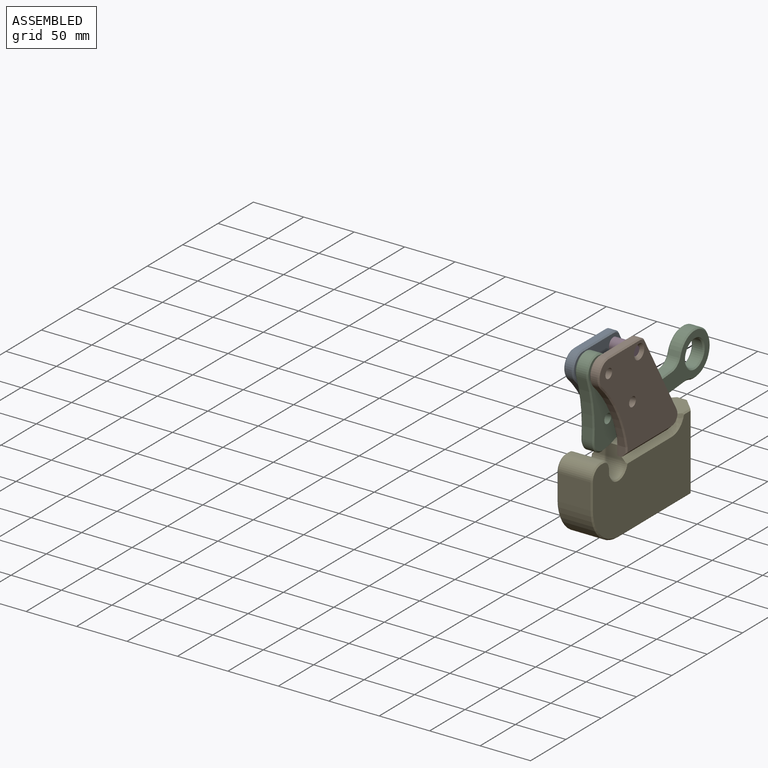
[diagram: assembled view]
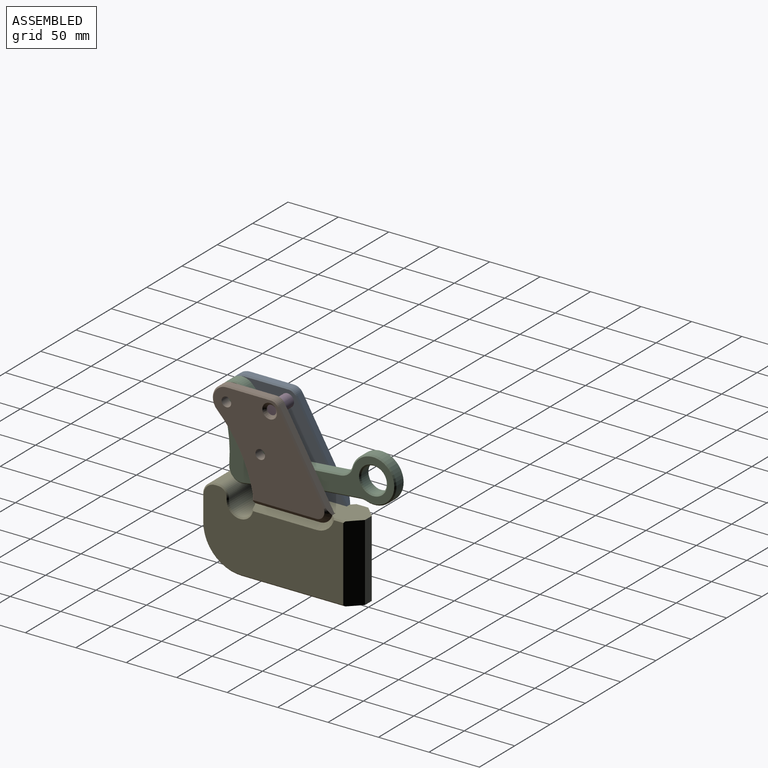
[diagram: assembled view, second angle]
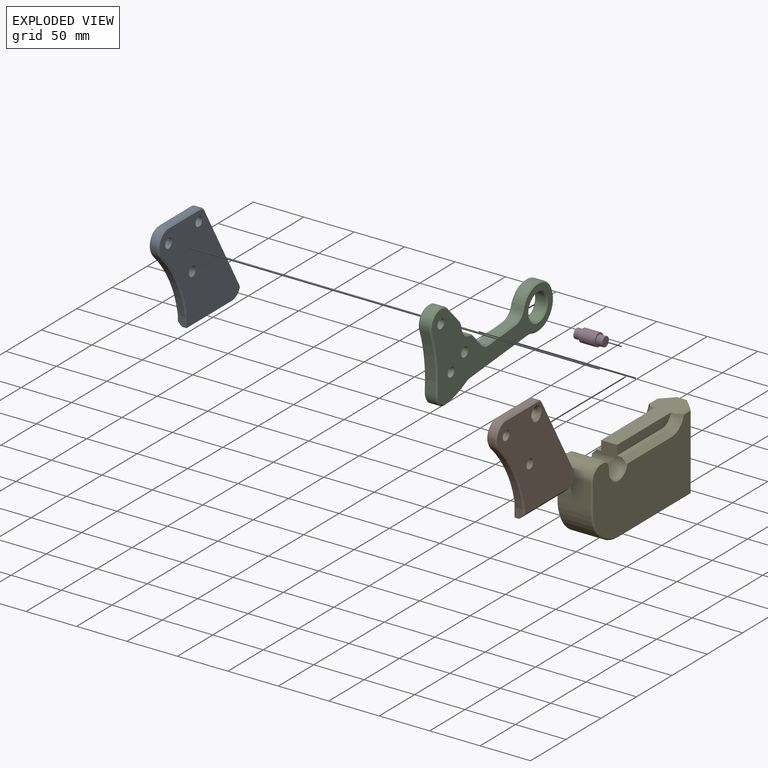
[diagram: exploded view]
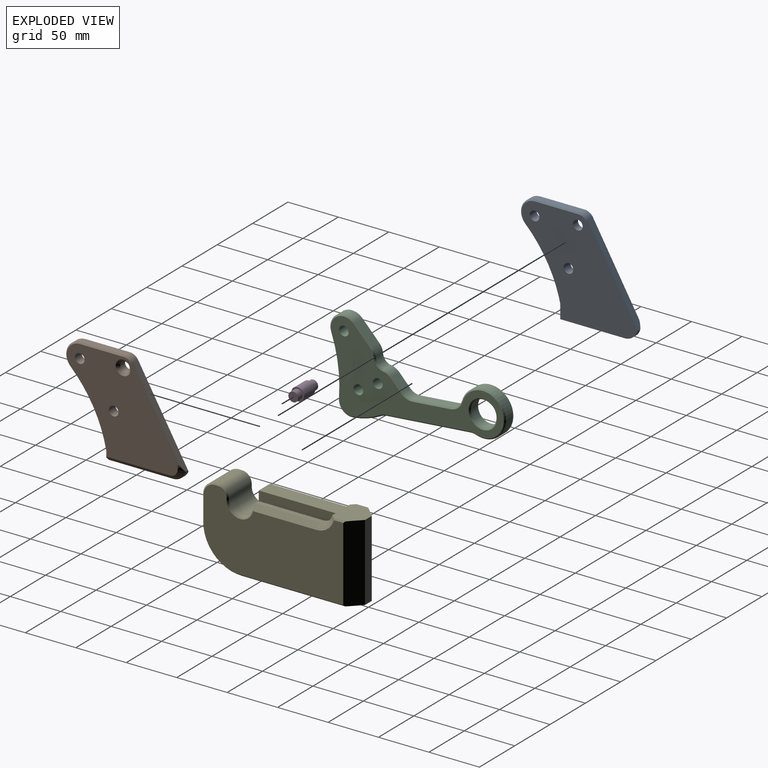
[diagram: exploded view, second angle]
ASSEMBLY  parts=5 mates=5
PART A: 27 faces, bbox 116.4x9.6x100.1 mm
  f0: cylinder r=12.7mm len=12.3mm, axis (0,1,0), area 77.6mm2, adj f1,f8,f10,f13,f25
  f1: plane 85.73x49.49mm, normal (0.87,0,0.5), area 680.6mm2, adj f0,f2,f13,f18,f25
  f2: cylinder r=9.53mm len=8.25mm, axis (0,1,0), area 69.7mm2, adj f1,f3,f14,f19
  f3: plane 43.86x6.99mm, normal (0,0,1), area 306.3mm2, adj f2,f4,f15,f21
  f4: cylinder r=14.29mm len=24.39mm, axis (0,1,0), area 235.1mm2, adj f3,f5,f16,f23
  f5: cylinder r=127mm len=66.1mm, axis (0,1,0), area 532mm2, adj f4,f6,f17,f22
  f6: plane 15.55x8.35mm, normal (-1,0,0), area 76.2mm2, adj f5,f8,f10,f17,f20,f24
  f7: cylinder r=4.76mm len=9.53mm, axis (0,1,0), area 285mm2, adj f10,f11
  f8: plane 63.9x4.7mm, normal (0,0,-1), area 300.3mm2, adj f0,f6,f10,f24
  f9: cylinder r=4.76mm len=9.53mm, axis (0,1,0), area 285mm2, adj f10,f11
  f10: plane 114.08x98.74mm, normal (0,-1,0), area 6479.7mm2, adj f0,f6,f7,f8,f9,f12,f13,f14
  f11: plane 110.19x93.92mm, normal (0,1,0), area 5995.4mm2, adj f7,f9,f18,f19,f20,f21,f22,f23
  f12: cylinder r=4.76mm len=9.53mm, axis (0,-1,0), area 209mm2, adj f10,f26
  f13: plane 87.38x50.63mm, normal (0.61,-0.71,0.35), area 178.8mm2, adj f0,f1,f10,f14
  f14: cone r=8.26mm half-angle=45deg, axis (0,1,0), area 16.7mm2, adj f2,f10,f13,f15
  f15: plane 43.86x1.27mm, normal (0,-0.71,0.71), area 78.8mm2, adj f3,f10,f14,f16
  f16: cone r=13.02mm half-angle=45deg, axis (0,1,0), area 57.8mm2, adj f4,f10,f15,f17
  f17: cone r=127mm half-angle=45deg, axis (0,-1,0), area 132.3mm2, adj f5,f6,f10,f16
  f18: plane 79.64x46.76mm, normal (0.61,0.71,0.35), area 163.9mm2, adj f1,f11,f19,f25
  f19: cone r=9.53mm half-angle=45deg, axis (0,-1,0), area 16.7mm2, adj f2,f11,f18,f21
  f20: plane 6.09x1.27mm, normal (-0.71,0.71,0), area 9.7mm2, adj f6,f11,f22,f24
  f21: plane 43.86x1.27mm, normal (0,0.71,0.71), area 78.8mm2, adj f3,f11,f19,f23
  f22: cone r=128.27mm half-angle=45deg, axis (0,1,0), area 137.6mm2, adj f5,f11,f20,f23
  f23: cone r=14.29mm half-angle=45deg, axis (0,-1,0), area 57.8mm2, adj f4,f11,f21,f22
  f24: plane 63.9x4.83mm, normal (0,0.71,-0.71), area 435mm2, adj f6,f8,f11,f20,f25
  f25: cone r=12.7mm half-angle=45deg, axis (0,-1,0), area 113.5mm2, adj f0,f1,f11,f18,f24
  f26: cone r=7.3mm half-angle=45deg, axis (0,1,0), area 136.2mm2, adj f11,f12
PART B: 27 faces, bbox 116.4x9.6x100.1 mm
  f0: cylinder r=12.7mm len=12.3mm, axis (0,1,0), area 77.6mm2, adj f1,f8,f11,f23,f26
  f1: plane 85.73x49.49mm, normal (0.87,0,0.5), area 680.6mm2, adj f0,f2,f18,f23,f26
  f2: cylinder r=9.53mm len=8.25mm, axis (0,1,0), area 69.7mm2, adj f1,f3,f17,f22
  f3: plane 43.86x6.99mm, normal (0,0,1), area 306.3mm2, adj f2,f4,f16,f21
  f4: cylinder r=14.29mm len=24.39mm, axis (0,1,0), area 235.1mm2, adj f3,f5,f15,f20
  f5: cylinder r=127mm len=66.1mm, axis (0,1,0), area 532mm2, adj f4,f6,f14,f19
  f6: plane 15.55x8.35mm, normal (-1,0,0), area 76.2mm2, adj f5,f8,f11,f13,f19,f25
  f7: cylinder r=4.76mm len=9.53mm, axis (0,1,0), area 285mm2, adj f10,f11
  f8: plane 63.9x4.7mm, normal (0,0,-1), area 300.3mm2, adj f0,f6,f11,f25
  f9: cylinder r=4.76mm len=9.53mm, axis (0,1,0), area 285mm2, adj f10,f11
  f10: plane 110.19x93.92mm, normal (0,-1,0), area 5995.4mm2, adj f7,f9,f13,f14,f15,f16,f17,f18
  f11: plane 114.08x98.74mm, normal (0,1,0), area 6479.7mm2, adj f0,f6,f7,f8,f9,f12,f19,f20
  f12: cylinder r=4.76mm len=9.53mm, axis (0,-1,0), area 209mm2, adj f11,f24
  f13: plane 6.09x1.27mm, normal (-0.71,-0.71,0), area 9.7mm2, adj f6,f10,f14,f25
  f14: cone r=127mm half-angle=45deg, axis (0,-1,0), area 137.6mm2, adj f5,f10,f13,f15
  f15: cone r=13.02mm half-angle=45deg, axis (0,1,0), area 57.8mm2, adj f4,f10,f14,f16
  f16: plane 43.86x1.27mm, normal (0,-0.71,0.71), area 78.8mm2, adj f3,f10,f15,f17
  f17: cone r=8.26mm half-angle=45deg, axis (0,1,0), area 16.7mm2, adj f2,f10,f16,f18
  f18: plane 79.64x46.76mm, normal (0.61,-0.71,0.35), area 163.9mm2, adj f1,f10,f17,f26
  f19: cone r=128.27mm half-angle=45deg, axis (0,1,0), area 132.3mm2, adj f5,f6,f11,f20
  f20: cone r=14.29mm half-angle=45deg, axis (0,-1,0), area 57.8mm2, adj f4,f11,f19,f21
  f21: plane 43.86x1.27mm, normal (0,0.71,0.71), area 78.8mm2, adj f3,f11,f20,f22
  f22: cone r=9.53mm half-angle=45deg, axis (0,-1,0), area 16.7mm2, adj f2,f11,f21,f23
  f23: plane 87.38x50.63mm, normal (0.61,0.71,0.35), area 178.8mm2, adj f0,f1,f11,f22
  f24: cone r=4.76mm half-angle=45deg, axis (0,-1,0), area 136.2mm2, adj f10,f12
  f25: plane 63.9x4.83mm, normal (0,-0.71,-0.71), area 435mm2, adj f6,f8,f10,f13,f26
  f26: cone r=7.87mm half-angle=45deg, axis (0,1,0), area 113.5mm2, adj f0,f1,f10,f18,f25
PART C: 56 faces, bbox 170.4x12.7x90.5 mm
  f0: plane 12.39x10.16mm, normal (0.78,0,0.62), area 160.8mm2, adj f3,f20,f31,f47
  f1: cylinder r=12.7mm len=11.83mm, axis (0,1,0), area 154.7mm2, adj f2,f15,f37,f53
  f2: plane 37.45x10.16mm, normal (0,0,1), area 380.5mm2, adj f1,f3,f35,f51
  f3: cylinder r=12.7mm len=10.16mm, axis (0,1,0), area 116mm2, adj f0,f2,f33,f49
  f4: plane 19.28x15.33mm, normal (0.78,0,0.62), area 250.3mm2, adj f5,f21,f23,f39
  f5: cylinder r=14.29mm len=25.47mm, axis (0,1,0), area 395.3mm2, adj f4,f6,f22,f38
  f6: cylinder r=139.7mm len=57.83mm, axis (0,1,0), area 592.4mm2, adj f5,f7,f24,f40
  f7: cylinder r=12.7mm len=14.77mm, axis (0,1,0), area 226.5mm2, adj f6,f8,f26,f42
  f8: cylinder r=76.2mm len=29mm, axis (0,1,0), area 303.6mm2, adj f7,f9,f28,f44
  f9: cylinder r=12.7mm len=10.16mm, axis (0,1,0), area 53.2mm2, adj f8,f10,f30,f46
  f10: plane 83.69x10.16mm, normal (0,0,-1), area 850.3mm2, adj f9,f11,f32,f48
  f11: cylinder r=12.7mm len=10.16mm, axis (0,1,0), area 55.4mm2, adj f10,f15,f34,f50
  f12: cylinder r=4.76mm len=12.7mm, axis (0,1,0), area 380mm2, adj f17,f18
  f13: cylinder r=4.76mm len=12.7mm, axis (0,1,0), area 380mm2, adj f17,f18
  f14: cylinder r=4.76mm len=12.7mm, axis (0,1,0), area 380mm2, adj f17,f18
  f15: cylinder r=22.23mm len=44.45mm, axis (0,1,0), area 1077.1mm2, adj f1,f11,f36,f52
  f16: cylinder r=12.7mm len=25.4mm, axis (0,1,0), area 810.7mm2, adj f54,f55
  f17: plane 167.85x87.93mm, normal (0,-1,0), area 5437mm2, adj f12,f13,f14,f38,f39,f40,f41,f42
  f18: plane 167.85x87.93mm, normal (0,1,0), area 5437mm2, adj f12,f13,f14,f22,f23,f24,f25,f26
  f19: cylinder r=9.53mm len=10.16mm, axis (0,-1,0), area 133.3mm2, adj f20,f21,f27,f43
  f20: cylinder r=12.7mm len=10.16mm, axis (0,-1,0), area 88.9mm2, adj f0,f19,f29,f45
  f21: cylinder r=12.7mm len=10.16mm, axis (0,-1,0), area 88.9mm2, adj f4,f19,f25,f41
  f22: cone r=14.29mm half-angle=45deg, axis (0,-1,0), area 66.8mm2, adj f5,f18,f23,f24
  f23: plane 20.07x16.33mm, normal (0.55,0.71,0.44), area 44.2mm2, adj f4,f18,f22,f25
  f24: cone r=140.97mm half-angle=45deg, axis (0,1,0), area 105.2mm2, adj f6,f18,f22,f26
  f25: cone r=11.43mm half-angle=45deg, axis (0,-1,0), area 14.9mm2, adj f18,f21,f23,f27
  f26: cone r=12.7mm half-angle=45deg, axis (0,-1,0), area 38mm2, adj f7,f18,f24,f28
  f27: cone r=10.79mm half-angle=45deg, axis (0,1,0), area 25.1mm2, adj f18,f19,f25,f29
  f28: cone r=76.2mm half-angle=45deg, axis (0,-1,0), area 53.2mm2, adj f8,f18,f26,f30
  f29: cone r=11.43mm half-angle=45deg, axis (0,-1,0), area 14.9mm2, adj f18,f20,f27,f31
  f30: cone r=13.97mm half-angle=45deg, axis (0,1,0), area 9.9mm2, adj f9,f18,f28,f32
  f31: plane 13.18x10.84mm, normal (0.55,0.71,0.44), area 28.4mm2, adj f0,f18,f29,f33
  f32: plane 83.69x1.27mm, normal (0,0.71,-0.71), area 150.3mm2, adj f10,f18,f30,f34
  f33: cone r=13.97mm half-angle=45deg, axis (0,1,0), area 21.5mm2, adj f3,f18,f31,f35
  f34: cone r=13.97mm half-angle=45deg, axis (0,1,0), area 10.3mm2, adj f11,f18,f32,f36
  f35: plane 37.45x1.27mm, normal (0,0.71,0.71), area 67.3mm2, adj f2,f18,f33,f37
  f36: cone r=22.23mm half-angle=45deg, axis (0,-1,0), area 185mm2, adj f15,f18,f34,f37
  f37: cone r=13.97mm half-angle=45deg, axis (0,1,0), area 28.7mm2, adj f1,f18,f35,f36
  f38: cone r=13.02mm half-angle=45deg, axis (0,1,0), area 66.8mm2, adj f5,f17,f39,f40
  f39: plane 20.07x16.33mm, normal (0.55,-0.71,0.44), area 44.2mm2, adj f4,f17,f38,f41
  f40: cone r=139.7mm half-angle=45deg, axis (0,-1,0), area 105.2mm2, adj f6,f17,f38,f42
  f41: cone r=11.43mm half-angle=45deg, axis (0,1,0), area 14.9mm2, adj f17,f21,f39,f43
  f42: cone r=11.43mm half-angle=45deg, axis (0,1,0), area 38mm2, adj f7,f17,f40,f44
  f43: cone r=9.53mm half-angle=45deg, axis (0,-1,0), area 25.1mm2, adj f17,f19,f41,f45
  f44: cone r=74.93mm half-angle=45deg, axis (0,1,0), area 53.2mm2, adj f8,f17,f42,f46
  f45: cone r=11.43mm half-angle=45deg, axis (0,1,0), area 14.9mm2, adj f17,f20,f43,f47
  f46: cone r=12.7mm half-angle=45deg, axis (0,-1,0), area 9.9mm2, adj f9,f17,f44,f48
  f47: plane 13.18x10.84mm, normal (0.55,-0.71,0.44), area 28.4mm2, adj f0,f17,f45,f49
  f48: plane 83.69x1.27mm, normal (0,-0.71,-0.71), area 150.3mm2, adj f10,f17,f46,f50
  f49: cone r=12.7mm half-angle=45deg, axis (0,-1,0), area 21.5mm2, adj f3,f17,f47,f51
  f50: cone r=12.7mm half-angle=45deg, axis (0,-1,0), area 10.3mm2, adj f11,f17,f48,f52
  f51: plane 37.45x1.27mm, normal (0,-0.71,0.71), area 67.3mm2, adj f2,f17,f49,f53
  f52: cone r=20.96mm half-angle=45deg, axis (0,1,0), area 185mm2, adj f15,f17,f50,f53
  f53: cone r=12.7mm half-angle=45deg, axis (0,-1,0), area 28.7mm2, adj f1,f17,f51,f52
  f54: cone r=13.97mm half-angle=45deg, axis (0,1,0), area 150.5mm2, adj f16,f18
  f55: cone r=12.7mm half-angle=45deg, axis (0,-1,0), area 150.5mm2, adj f16,f17
PART D: 7 faces, bbox 12.7x28.6x12.7 mm
  f0: cylinder r=4.76mm len=9.53mm, axis (0,1,0), area 190mm2, adj f1,f3
  f1: plane 9.53x9.53mm, normal (0,-1,0), area 71.3mm2, adj f0
  f2: cylinder r=6.35mm len=15.88mm, axis (0,1,0), area 633.4mm2, adj f3,f4
  f3: plane 12.7x12.7mm, normal (0,-1,0), area 55.4mm2, adj f0,f2
  f4: plane 12.7x12.7mm, normal (0,1,0), area 55.4mm2, adj f2,f6
  f5: plane 9.53x9.53mm, normal (0,1,0), area 71.3mm2, adj f6
  f6: cylinder r=4.76mm len=9.53mm, axis (0,1,0), area 190mm2, adj f4,f5
PART E: 43 faces, bbox 152.5x35x77 mm
  f0: plane 138.43x73.66mm, normal (0,1,0), area 8304.4mm2, adj f19,f20,f23,f24,f25,f26,f27,f28
  f1: plane 29.53x11.91mm, normal (-1,0,0), area 215.9mm2, adj f4,f5,f13,f15,f17,f18,f19,f21
  f2: plane 114.3x32.39mm, normal (0,0,-1), area 3571mm2, adj f3,f11,f30,f38,f41,f42
  f3: plane 76.2x9.53mm, normal (1,0,0), area 725.8mm2, adj f2,f4,f41,f42
  f4: plane 103.3x32.5mm, normal (0,0,1), area 1938.1mm2, adj f1,f3,f14,f15,f16,f18,f20,f22
  f5: cylinder r=11.91mm len=32.39mm, axis (0,1,0), area 1209.3mm2, adj f1,f6,f19,f21,f23,f31
  f6: plane 32.39x2.38mm, normal (1,0,0), area 77.1mm2, adj f5,f7,f24,f32
  f7: cylinder r=9.53mm len=32.39mm, axis (0,1,0), area 484.5mm2, adj f6,f8,f25,f33
  f8: plane 32.39x3.18mm, normal (0,0,1), area 102.8mm2, adj f7,f9,f26,f34
  f9: cylinder r=12.7mm len=32.39mm, axis (0,1,0), area 646.1mm2, adj f8,f10,f27,f35
  f10: plane 32.39x25.4mm, normal (-1,0,0), area 822.6mm2, adj f9,f11,f28,f36
  f11: cylinder r=38.1mm len=38.1mm, axis (0,1,0), area 1938.2mm2, adj f2,f10,f29,f37
  f12: plane 138.43x73.66mm, normal (0,-1,0), area 8304.4mm2, adj f21,f22,f31,f32,f33,f34,f35,f36
  f13: plane 63.9x4.45mm, normal (0,0,1), area 284.1mm2, adj f1,f14,f15,f21
  f14: cylinder r=12.7mm len=12.3mm, axis (0,-1,0), area 74.4mm2, adj f4,f13,f15,f22
  f15: plane 76.2x9.53mm, normal (0,-1,0), area 695.5mm2, adj f1,f4,f13,f14
  f16: cylinder r=12.7mm len=12.3mm, axis (0,1,0), area 74.4mm2, adj f4,f17,f18,f20
  f17: plane 63.9x4.45mm, normal (0,0,1), area 284.1mm2, adj f1,f16,f18,f19
  f18: plane 76.2x9.53mm, normal (0,1,0), area 695.5mm2, adj f1,f4,f16,f17
  f19: plane 64.04x5.13mm, normal (0,0.71,0.71), area 458.3mm2, adj f0,f1,f5,f17,f20,f23
  f20: cone r=17.78mm half-angle=45deg, axis (0,1,0), area 147.6mm2, adj f0,f4,f16,f19,f39
  f21: plane 64.04x5.13mm, normal (0,-0.71,0.71), area 458.3mm2, adj f1,f5,f12,f13,f22,f31
  f22: cone r=12.7mm half-angle=45deg, axis (0,-1,0), area 147.6mm2, adj f4,f12,f14,f21,f40
  f23: cone r=13.18mm half-angle=45deg, axis (0,1,0), area 67.1mm2, adj f0,f5,f19,f24
  f24: plane 2.38x1.27mm, normal (0.71,0.71,0), area 4.3mm2, adj f0,f6,f23,f25
  f25: cone r=9.53mm half-angle=45deg, axis (0,-1,0), area 25.1mm2, adj f0,f7,f24,f26
  f26: plane 3.18x1.27mm, normal (0,0.71,0.71), area 5.7mm2, adj f0,f8,f25,f27
  f27: cone r=12.7mm half-angle=45deg, axis (0,-1,0), area 34mm2, adj f0,f9,f26,f28
  f28: plane 25.4x1.27mm, normal (-0.71,0.71,0), area 45.6mm2, adj f0,f10,f27,f29
  f29: cone r=38.1mm half-angle=45deg, axis (0,-1,0), area 105.7mm2, adj f0,f11,f28,f30
  f30: plane 102.87x1.27mm, normal (0,0.71,-0.71), area 183.6mm2, adj f0,f2,f29,f41
  f31: cone r=11.91mm half-angle=45deg, axis (0,-1,0), area 67.1mm2, adj f5,f12,f21,f32
  f32: plane 2.38x1.27mm, normal (0.71,-0.71,0), area 4.3mm2, adj f6,f12,f31,f33
  f33: cone r=8.26mm half-angle=45deg, axis (0,1,0), area 25.1mm2, adj f7,f12,f32,f34
  f34: plane 3.18x1.27mm, normal (0,-0.71,0.71), area 5.7mm2, adj f8,f12,f33,f35
  f35: cone r=11.43mm half-angle=45deg, axis (0,1,0), area 34mm2, adj f9,f12,f34,f36
  f36: plane 25.4x1.27mm, normal (-0.71,-0.71,0), area 45.6mm2, adj f10,f12,f35,f37
  f37: cone r=36.83mm half-angle=45deg, axis (0,1,0), area 105.7mm2, adj f11,f12,f36,f38
  f38: plane 102.87x1.27mm, normal (0,-0.71,-0.71), area 183.6mm2, adj f2,f12,f37,f42
  f39: plane 11.68x1.3mm, normal (0,0.71,0.71), area 18.9mm2, adj f0,f4,f20,f41
  f40: plane 11.68x1.3mm, normal (0,-0.71,0.71), area 18.9mm2, adj f4,f12,f22,f42
  f41: plane 76.2x12.7mm, normal (0.71,0.71,0), area 1366.3mm2, adj f0,f2,f3,f4,f30,f39
  f42: plane 76.2x12.7mm, normal (0.71,-0.71,0), area 1366.3mm2, adj f2,f3,f4,f12,f38,f40
PLACE A rot(axis=(0,0,1),90deg) t=(-17.46,-128.59,114.3)mm
PLACE B rot(axis=(0,0,1),90deg) t=(7.94,-128.59,114.3)mm
PLACE C rot(axis=(0.04,-0.04,1),90.1deg) t=(0,-128.59,114.3)mm
PLACE D rot(axis=(0.58,0.58,-0.58),120deg) t=(0,-85.65,117.48)mm
PLACE E rot(axis=(0,0,1),90deg) t=(0,-76.2,0)mm
MATE fastened A.f10 <-> E.f18  axis (1,0,0) through (-7.94,-39.28,28.58)mm
MATE revolute C.f14 <-> B.f7  axis (1,0,0) through (6.35,-128.59,114.3)mm
MATE fastened D.f0 <-> B.f12  axis (1,0,0) through (7.94,-85.65,117.48)mm
MATE fastened B.f11 <-> E.f15  axis (-1,0,0) through (7.94,-39.28,28.57)mm
MATE cylindrical C.f12 <-> B.f9  axis (1,0,0) through (6.35,-94.99,76.2)mm
